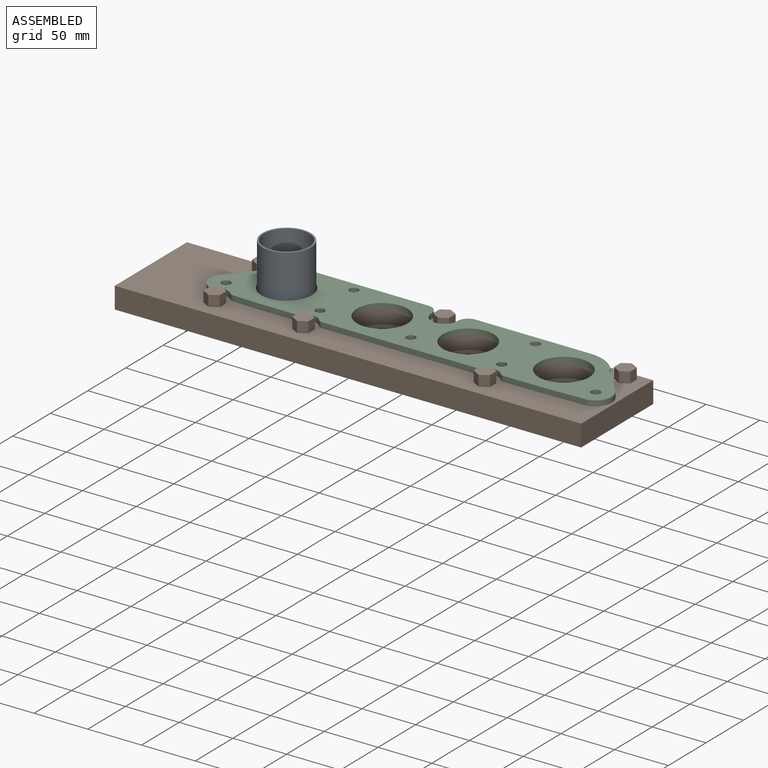
[diagram: assembled view]
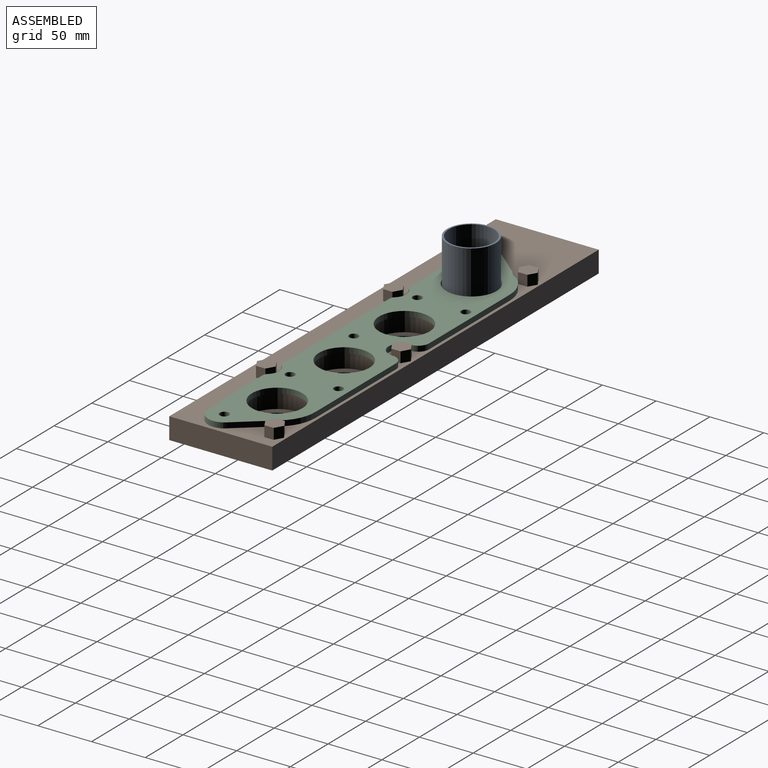
[diagram: assembled view, second angle]
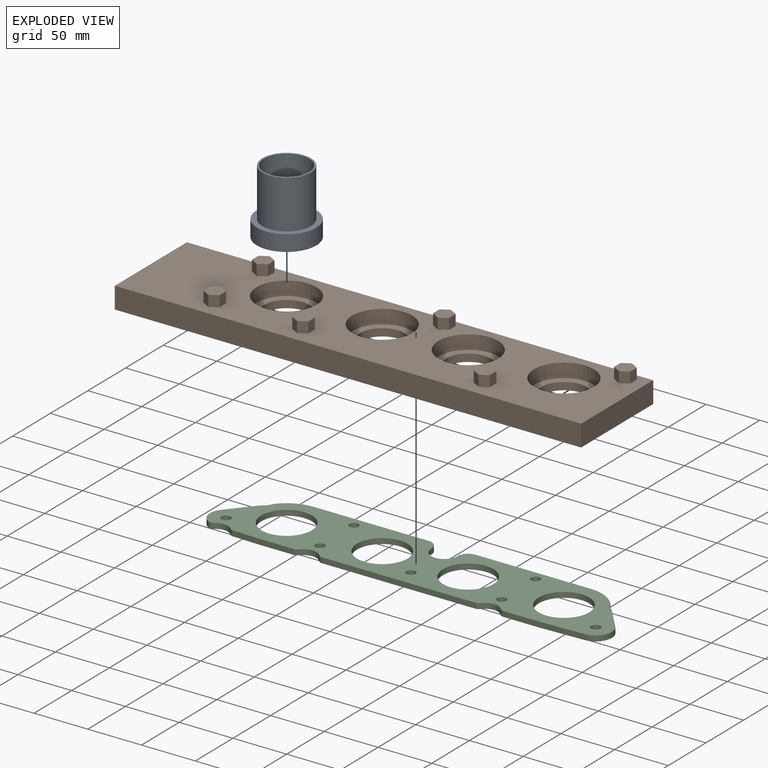
[diagram: exploded view]
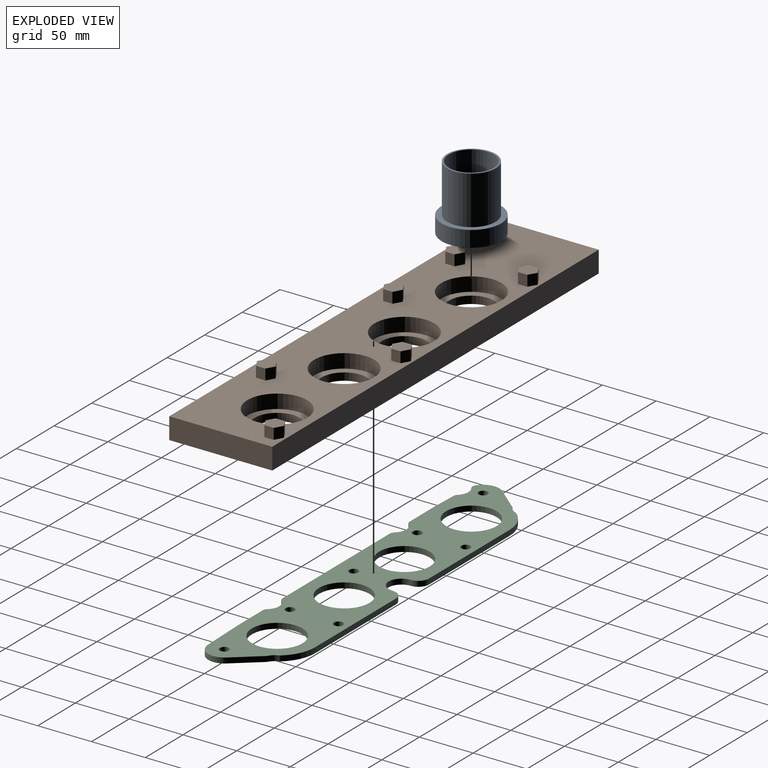
[diagram: exploded view, second angle]
ASSEMBLY  parts=3 mates=2
PART A: 6 faces, bbox 55.3x55.3x60 mm
  f0: cylinder r=21mm len=60mm, axis (0,0,-1), area 7916.8mm2, adj f2,f3
  f1: cylinder r=22.6mm len=45.2mm, axis (0,0,-1), area 6390mm2, adj f2,f5
  f2: plane 45.2x45.2mm, normal (0,0,1), area 219.2mm2, adj f0,f1
  f3: plane 55.3x55.3mm, normal (0,0,-1), area 1016.4mm2, adj f0,f4
  f4: cylinder r=27.65mm len=55.3mm, axis (0,0,-1), area 2606mm2, adj f3,f5
  f5: plane 55.3x55.3mm, normal (0,0,1), area 797.2mm2, adj f1,f4
PART B: 60 faces, bbox 433.8x95.8x30 mm
  f0: plane 433.8x95.8mm, normal (0,0,1), area 30607.1mm2, adj f1,f2,f3,f4,f5,f6,f7,f8
  f1: plane 95.8x20mm, normal (-1,0,0), area 1916mm2, adj f0,f2,f7,f9
  f2: plane 433.8x20mm, normal (0,-1,0), area 8676mm2, adj f0,f1,f3,f9
  f3: plane 95.8x20mm, normal (1,0,0), area 1916mm2, adj f0,f2,f7,f9
  f4: cylinder r=27.9mm len=55.8mm, axis (0,0,1), area 2278.9mm2, adj f0,f57
  f5: cylinder r=27.9mm len=55.8mm, axis (0,0,1), area 2278.9mm2, adj f0,f55
  f6: cylinder r=27.9mm len=55.8mm, axis (0,0,1), area 2278.9mm2, adj f0,f53
  f7: plane 433.8x20mm, normal (0,1,0), area 8676mm2, adj f0,f1,f3,f9
  f8: cylinder r=27.9mm len=55.8mm, axis (0,0,1), area 2278.9mm2, adj f0,f59
  f9: plane 433.8x95.8mm, normal (0,0,-1), area 36016.3mm2, adj f1,f2,f3,f7,f52,f54,f56,f58
  f10: plane 10x7.5mm, normal (0.5,-0.87,0), area 86.6mm2, adj f0,f11,f15,f16
  f11: plane 10x8.66mm, normal (1,0,0), area 86.6mm2, adj f0,f10,f12,f16
  f12: plane 10x7.5mm, normal (0.5,0.87,0), area 86.6mm2, adj f0,f11,f13,f16
  f13: plane 10x7.5mm, normal (-0.5,0.87,0), area 86.6mm2, adj f0,f12,f14,f16
  f14: plane 10x8.66mm, normal (-1,0,0), area 86.6mm2, adj f0,f13,f15,f16
  f15: plane 10x7.5mm, normal (-0.5,-0.87,0), area 86.6mm2, adj f0,f10,f14,f16
  f16: plane 17.32x15mm, normal (0,0,1), area 194.9mm2, adj f10,f11,f12,f13,f14,f15
  f17: plane 10x7.5mm, normal (0.5,-0.87,0), area 86.6mm2, adj f0,f18,f22,f23
  f18: plane 10x8.66mm, normal (1,0,0), area 86.6mm2, adj f0,f17,f19,f23
  f19: plane 10x7.5mm, normal (0.5,0.87,0), area 86.6mm2, adj f0,f18,f20,f23
  f20: plane 10x7.5mm, normal (-0.5,0.87,0), area 86.6mm2, adj f0,f19,f21,f23
  f21: plane 10x8.66mm, normal (-1,0,0), area 86.6mm2, adj f0,f20,f22,f23
  f22: plane 10x7.5mm, normal (-0.5,-0.87,0), area 86.6mm2, adj f0,f17,f21,f23
  f23: plane 17.32x15mm, normal (0,0,1), area 194.9mm2, adj f17,f18,f19,f20,f21,f22
  f24: plane 10x7.5mm, normal (-0.5,0.87,0), area 86.6mm2, adj f0,f25,f29,f30
  f25: plane 10x8.66mm, normal (-1,0,0), area 86.6mm2, adj f0,f24,f26,f30
  f26: plane 10x7.5mm, normal (-0.5,-0.87,0), area 86.6mm2, adj f0,f25,f27,f30
  f27: plane 10x7.5mm, normal (0.5,-0.87,0), area 86.6mm2, adj f0,f26,f28,f30
  f28: plane 10x8.66mm, normal (1,0,0), area 86.6mm2, adj f0,f27,f29,f30
  f29: plane 10x7.5mm, normal (0.5,0.87,0), area 86.6mm2, adj f0,f24,f28,f30
  f30: plane 17.32x15mm, normal (0,0,1), area 194.9mm2, adj f24,f25,f26,f27,f28,f29
  f31: plane 10x7.5mm, normal (-0.5,0.87,0), area 86.6mm2, adj f0,f32,f36,f37
  f32: plane 10x8.66mm, normal (-1,0,0), area 86.6mm2, adj f0,f31,f33,f37
  f33: plane 10x7.5mm, normal (-0.5,-0.87,0), area 86.6mm2, adj f0,f32,f34,f37
  f34: plane 10x7.5mm, normal (0.5,-0.87,0), area 86.6mm2, adj f0,f33,f35,f37
  f35: plane 10x8.66mm, normal (1,0,0), area 86.6mm2, adj f0,f34,f36,f37
  f36: plane 10x7.5mm, normal (0.5,0.87,0), area 86.6mm2, adj f0,f31,f35,f37
  f37: plane 17.32x15mm, normal (0,0,1), area 194.9mm2, adj f31,f32,f33,f34,f35,f36
  f38: plane 10x7.5mm, normal (-0.5,0.87,0), area 86.6mm2, adj f0,f39,f43,f44
  f39: plane 10x8.66mm, normal (-1,0,0), area 86.6mm2, adj f0,f38,f40,f44
  f40: plane 10x7.5mm, normal (-0.5,-0.87,0), area 86.6mm2, adj f0,f39,f41,f44
  f41: plane 10x7.5mm, normal (0.5,-0.87,0), area 86.6mm2, adj f0,f40,f42,f44
  f42: plane 10x8.66mm, normal (1,0,0), area 86.6mm2, adj f0,f41,f43,f44
  f43: plane 10x7.5mm, normal (0.5,0.87,0), area 86.6mm2, adj f0,f38,f42,f44
  f44: plane 17.32x15mm, normal (0,0,1), area 194.9mm2, adj f38,f39,f40,f41,f42,f43
  f45: plane 10x7.5mm, normal (-0.5,0.87,0), area 86.6mm2, adj f0,f46,f50,f51
  f46: plane 10x8.66mm, normal (-1,0,0), area 86.6mm2, adj f0,f45,f47,f51
  f47: plane 10x7.5mm, normal (-0.5,-0.87,0), area 86.6mm2, adj f0,f46,f48,f51
  f48: plane 10x7.5mm, normal (0.5,-0.87,0), area 86.6mm2, adj f0,f47,f49,f51
  f49: plane 10x8.66mm, normal (1,0,0), area 86.6mm2, adj f0,f48,f50,f51
  f50: plane 10x7.5mm, normal (0.5,0.87,0), area 86.6mm2, adj f0,f45,f49,f51
  f51: plane 17.32x15mm, normal (0,0,1), area 194.9mm2, adj f45,f46,f47,f48,f49,f50
  f52: cylinder r=21mm len=42mm, axis (0,0,1), area 923.6mm2, adj f9,f53
  f53: plane 55.8x55.8mm, normal (0,0,1), area 1060mm2, adj f6,f52
  f54: cylinder r=21mm len=42mm, axis (0,0,1), area 923.6mm2, adj f9,f55
  f55: plane 55.8x55.8mm, normal (0,0,1), area 1060mm2, adj f5,f54
  f56: cylinder r=21mm len=42mm, axis (0,0,1), area 923.6mm2, adj f9,f57
  f57: plane 55.8x55.8mm, normal (0,0,1), area 1060mm2, adj f4,f56
  f58: cylinder r=21mm len=42mm, axis (0,0,1), area 923.6mm2, adj f9,f59
  f59: plane 55.8x55.8mm, normal (0,0,1), area 1060mm2, adj f8,f58
PART C: 48 faces, bbox 373.8x71x5 mm
  f0: plane 142.63x5mm, normal (0,-1,0), area 713.1mm2, adj f1,f45,f46,f47
  f1: cylinder r=5mm len=5mm, axis (0,0,-1), area 22mm2, adj f0,f2,f46,f47
  f2: cylinder r=12mm len=18.51mm, axis (0,0,-1), area 105.7mm2, adj f1,f3,f46,f47
  f3: cylinder r=5mm len=5mm, axis (0,0,-1), area 22mm2, adj f2,f4,f46,f47
  f4: plane 32.55x5mm, normal (0,-1,0), area 162.8mm2, adj f3,f5,f46,f47
  f5: plane 42.23x5mm, normal (0.03,-1,0), area 211.2mm2, adj f4,f6,f46,f47
  f6: cylinder r=15mm len=24.66mm, axis (0,0,-1), area 167.9mm2, adj f5,f7,f46,f47
  f7: plane 23.27x19.6mm, normal (0.76,0.64,0), area 152.1mm2, adj f6,f8,f46,f47
  f8: cylinder r=5mm len=5mm, axis (0,0,-1), area 8.6mm2, adj f7,f9,f46,f47
  f9: cylinder r=12mm len=6.18mm, axis (0,0,-1), area 41.2mm2, adj f8,f10,f46,f47
  f10: cylinder r=5mm len=5mm, axis (0,0,-1), area 8.6mm2, adj f9,f11,f46,f47
  f11: plane 5x0.29mm, normal (0.76,0.64,0), area 1.9mm2, adj f10,f12,f46,f47
  f12: cylinder r=35.5mm len=27.15mm, axis (0,0,-1), area 154.5mm2, adj f11,f13,f46,f47
  f13: plane 107x5mm, normal (0,1,0), area 535mm2, adj f12,f14,f46,f47
  f14: cylinder r=10mm len=10mm, axis (0,0,-1), area 78.5mm2, adj f13,f15,f46,f47
  f15: plane 5x0.2mm, normal (-1,0,0), area 1mm2, adj f14,f16,f46,f47
  f16: cylinder r=12mm len=24mm, axis (0,0,-1), area 188.5mm2, adj f15,f17,f46,f47
  f17: plane 5x0.2mm, normal (1,0,0), area 1mm2, adj f16,f18,f46,f47
  f18: cylinder r=10mm len=10mm, axis (0,0,-1), area 78.5mm2, adj f17,f19,f46,f47
  f19: plane 107x5mm, normal (0,1,0), area 535mm2, adj f18,f20,f46,f47
  f20: cylinder r=35.5mm len=27.15mm, axis (0,0,-1), area 154.5mm2, adj f19,f21,f46,f47
  f21: plane 5x0.29mm, normal (-0.76,0.64,0), area 1.9mm2, adj f20,f22,f46,f47
  f22: cylinder r=5mm len=5mm, axis (0,0,-1), area 8.6mm2, adj f21,f23,f46,f47
  f23: cylinder r=12mm len=6.18mm, axis (0,0,-1), area 41.2mm2, adj f22,f24,f46,f47
  f24: cylinder r=5mm len=5mm, axis (0,0,-1), area 8.6mm2, adj f23,f25,f46,f47
  f25: plane 23.27x19.6mm, normal (-0.76,0.64,0), area 152.1mm2, adj f24,f26,f46,f47
  f26: cylinder r=15mm len=22.54mm, axis (0,0,-1), area 129.9mm2, adj f25,f27,f46,f47
  f27: cylinder r=5mm len=5.56mm, axis (0,0,-1), area 29.5mm2, adj f26,f28,f46,f47
  f28: cylinder r=12mm len=15.94mm, axis (0,0,-1), area 87.6mm2, adj f27,f29,f46,f47
  f29: cylinder r=5mm len=5mm, axis (0,0,-1), area 19.6mm2, adj f28,f30,f46,f47
  f30: plane 24.44x5mm, normal (-0.03,-1,0), area 122.3mm2, adj f29,f31,f46,f47
  f31: plane 32.7x5mm, normal (0,-1,0), area 163.5mm2, adj f30,f32,f46,f47
  f32: cylinder r=5mm len=5mm, axis (0,0,-1), area 22mm2, adj f31,f33,f46,f47
  f33: cylinder r=12mm len=18.51mm, axis (0,0,-1), area 105.7mm2, adj f32,f45,f46,f47
  f34: cylinder r=23.5mm len=47mm, axis (0,0,-1), area 738.3mm2, adj f46,f47
  f35: cylinder r=23.5mm len=47mm, axis (0,0,-1), area 738.3mm2, adj f46,f47
  f36: cylinder r=23.5mm len=47mm, axis (0,0,-1), area 738.3mm2, adj f46,f47
  f37: cylinder r=23.5mm len=47mm, axis (0,0,-1), area 738.3mm2, adj f46,f47
  f38: cylinder r=4.25mm len=8.5mm, axis (0,0,-1), area 133.5mm2, adj f46,f47
  f39: cylinder r=4.25mm len=8.5mm, axis (0,0,-1), area 133.5mm2, adj f46,f47
  f40: cylinder r=4.25mm len=8.5mm, axis (0,0,-1), area 133.5mm2, adj f46,f47
  f41: cylinder r=4.25mm len=8.5mm, axis (0,0,-1), area 133.5mm2, adj f46,f47
  f42: cylinder r=4.25mm len=8.5mm, axis (0,0,-1), area 133.5mm2, adj f46,f47
  f43: cylinder r=4.25mm len=8.5mm, axis (0,0,-1), area 133.5mm2, adj f46,f47
  f44: cylinder r=4.25mm len=8.5mm, axis (0,0,-1), area 133.5mm2, adj f46,f47
  f45: cylinder r=5mm len=5mm, axis (0,0,-1), area 22mm2, adj f0,f33,f46,f47
  f46: plane 373.8x70.98mm, normal (0,0,1), area 16100.6mm2, adj f0,f1,f2,f3,f4,f5,f6,f7
  f47: plane 373.8x70.98mm, normal (0,0,-1), area 16100.6mm2, adj f0,f1,f2,f3,f4,f5,f6,f7
PLACE A t=(-124.78,-129.02,-6.91)mm
PLACE B t=(-63.38,-129.02,6.09)mm
PLACE C t=(-63.38,-129.02,8.09)mm
MATE parallel C.f20 <-> A.f1  axis (0,0,-1) through (-124.78,-129.02,8.09)mm
MATE parallel B.f6 <-> A.f0  axis (0,0,1) through (-124.78,-129.02,-6.91)mm
